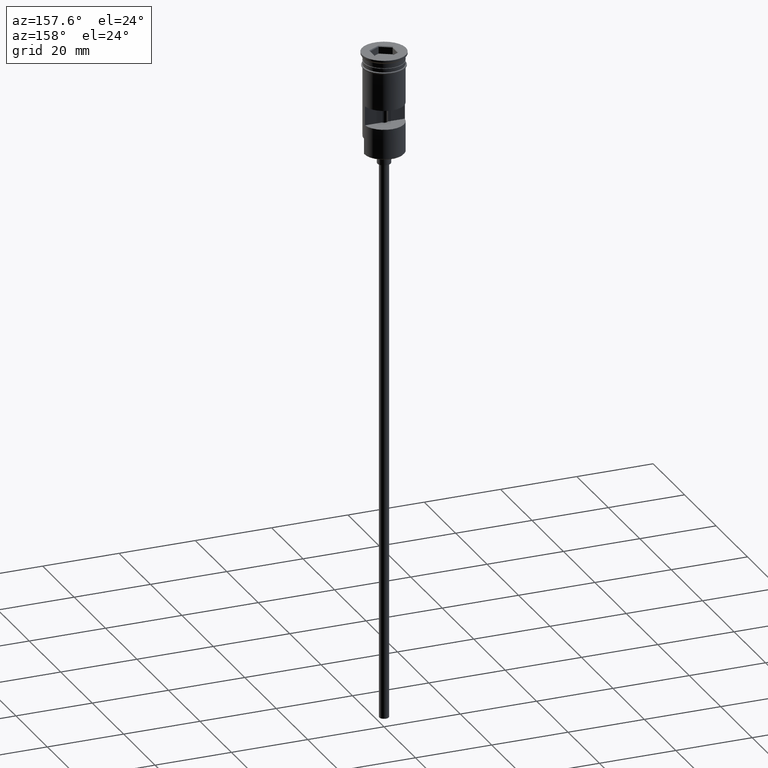
[diagram: clean part render]
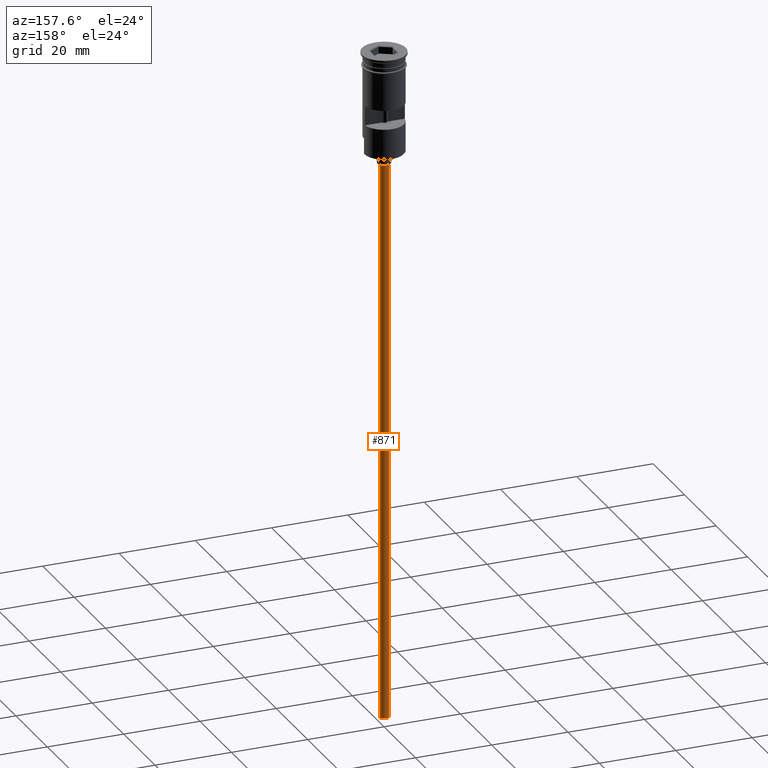
[diagram: same view with one face highlighted and labeled with its STEP entity id]
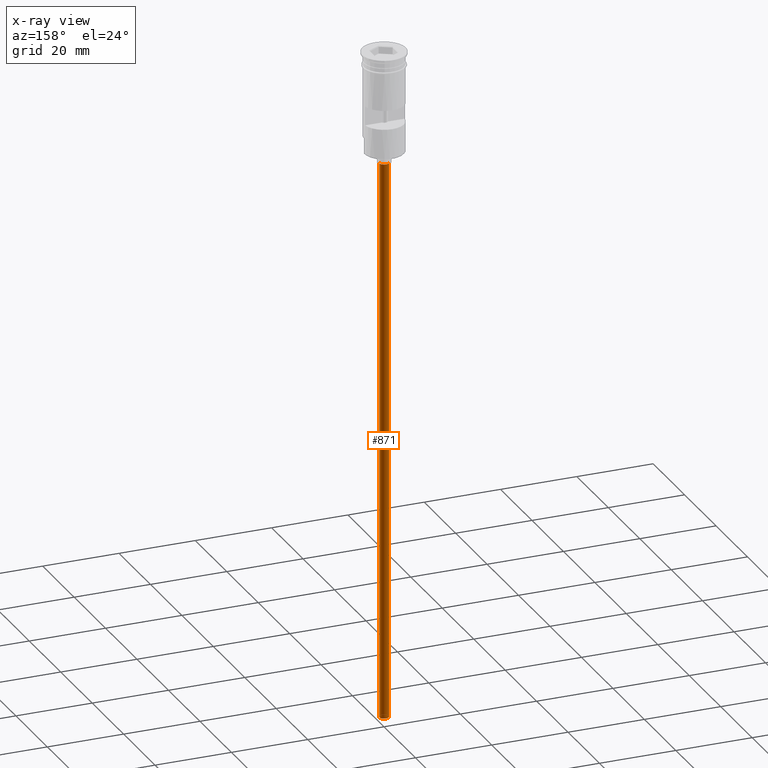
[diagram: x-ray of the same camera — body ghosted, the highlighted face saturated]
A machine part, auxiliary view. The second image highlights one B-rep face of the part: STEP entity #871.
The next image is the same camera in x-ray: the body ghosted, the highlighted face saturated — about 0% of this face is hidden behind the body in this view.
In plain terms, the highlighted cylindrical surface (edge-blend (fillet) strip) has radius 1.25 mm, axis along (-0, -0, 1).
Its self-contained STEP definition (entity closure, byte-faithful):
#9 = DIRECTION ( 'NONE',  ( -0.000000000000000000, -0.000000000000000000, 1.000000000000000000 ) ) ;
#17 = DIRECTION ( 'NONE',  ( -1.000000000000000000, 0.000000000000000000, 0.000000000000000000 ) ) ;
#37 = EDGE_LOOP ( 'NONE', ( #1266, #1446, #403, #356 ) ) ;
#76 = DIRECTION ( 'NONE',  ( -0.000000000000000000, -0.000000000000000000, 1.000000000000000000 ) ) ;
#78 = EDGE_CURVE ( 'NONE', #1197, #1344, #168, .T. ) ;
#101 = AXIS2_PLACEMENT_3D ( 'NONE', #942, #708, #1056 ) ;
#147 = VECTOR ( 'NONE', #9, 1000.000000000000000 ) ;
#168 = LINE ( 'NONE', #401, #147 ) ;
#249 = CARTESIAN_POINT ( 'NONE',  ( 0.000000000000000000, 0.000000000000000000, -176.5000000000000000 ) ) ;
#256 = EDGE_CURVE ( 'NONE', #967, #1160, #1181, .T. ) ;
#277 = AXIS2_PLACEMENT_3D ( 'NONE', #249, #1115, #1372 ) ;
#287 = DIRECTION ( 'NONE',  ( 0.000000000000000000, 0.000000000000000000, -1.000000000000000000 ) ) ;
#356 = ORIENTED_EDGE ( 'NONE', *, *, #256, .F. ) ;
#401 = CARTESIAN_POINT ( 'NONE',  ( -1.250000000000000000, 1.530808498934191571E-16, -176.5000000000000000 ) ) ;
#403 = ORIENTED_EDGE ( 'NONE', *, *, #1491, .T. ) ;
#443 = EDGE_CURVE ( 'NONE', #1197, #967, #508, .T. ) ;
#508 = CIRCLE ( 'NONE', #1410, 1.250000000000000000 ) ;
#585 = VECTOR ( 'NONE', #76, 1000.000000000000000 ) ;
#708 = DIRECTION ( 'NONE',  ( 0.000000000000000000, 0.000000000000000000, -1.000000000000000000 ) ) ;
#749 = CARTESIAN_POINT ( 'NONE',  ( -1.250000000000000000, 1.530808498934191571E-16, -29.50000000000000000 ) ) ;
#826 = CARTESIAN_POINT ( 'NONE',  ( 1.250000000000000000, 0.000000000000000000, -176.5000000000000000 ) ) ;
#871 = ADVANCED_FACE ( 'NONE', ( #1354 ), #1125, .T. ) ;
#942 = CARTESIAN_POINT ( 'NONE',  ( 0.000000000000000000, 0.000000000000000000, -29.50000000000000000 ) ) ;
#967 = VERTEX_POINT ( 'NONE', #1004 ) ;
#1004 = CARTESIAN_POINT ( 'NONE',  ( 1.250000000000000000, 0.000000000000000000, -176.5000000000000000 ) ) ;
#1056 = DIRECTION ( 'NONE',  ( -1.000000000000000000, 0.000000000000000000, 0.000000000000000000 ) ) ;
#1115 = DIRECTION ( 'NONE',  ( -0.000000000000000000, -0.000000000000000000, 1.000000000000000000 ) ) ;
#1125 = CYLINDRICAL_SURFACE ( 'NONE', #277, 1.250000000000000000 ) ;
#1160 = VERTEX_POINT ( 'NONE', #1562 ) ;
#1181 = LINE ( 'NONE', #826, #585 ) ;
#1197 = VERTEX_POINT ( 'NONE', #1437 ) ;
#1251 = CARTESIAN_POINT ( 'NONE',  ( 0.000000000000000000, 0.000000000000000000, -176.5000000000000000 ) ) ;
#1266 = ORIENTED_EDGE ( 'NONE', *, *, #443, .F. ) ;
#1344 = VERTEX_POINT ( 'NONE', #749 ) ;
#1354 = FACE_OUTER_BOUND ( 'NONE', #37, .T. ) ;
#1372 = DIRECTION ( 'NONE',  ( 1.000000000000000000, 0.000000000000000000, 0.000000000000000000 ) ) ;
#1410 = AXIS2_PLACEMENT_3D ( 'NONE', #1251, #287, #17 ) ;
#1417 = CIRCLE ( 'NONE', #101, 1.250000000000000000 ) ;
#1437 = CARTESIAN_POINT ( 'NONE',  ( -1.250000000000000000, 1.530808498934191571E-16, -176.5000000000000000 ) ) ;
#1446 = ORIENTED_EDGE ( 'NONE', *, *, #78, .T. ) ;
#1491 = EDGE_CURVE ( 'NONE', #1344, #1160, #1417, .T. ) ;
#1562 = CARTESIAN_POINT ( 'NONE',  ( 1.250000000000000000, 0.000000000000000000, -29.50000000000000000 ) ) ;